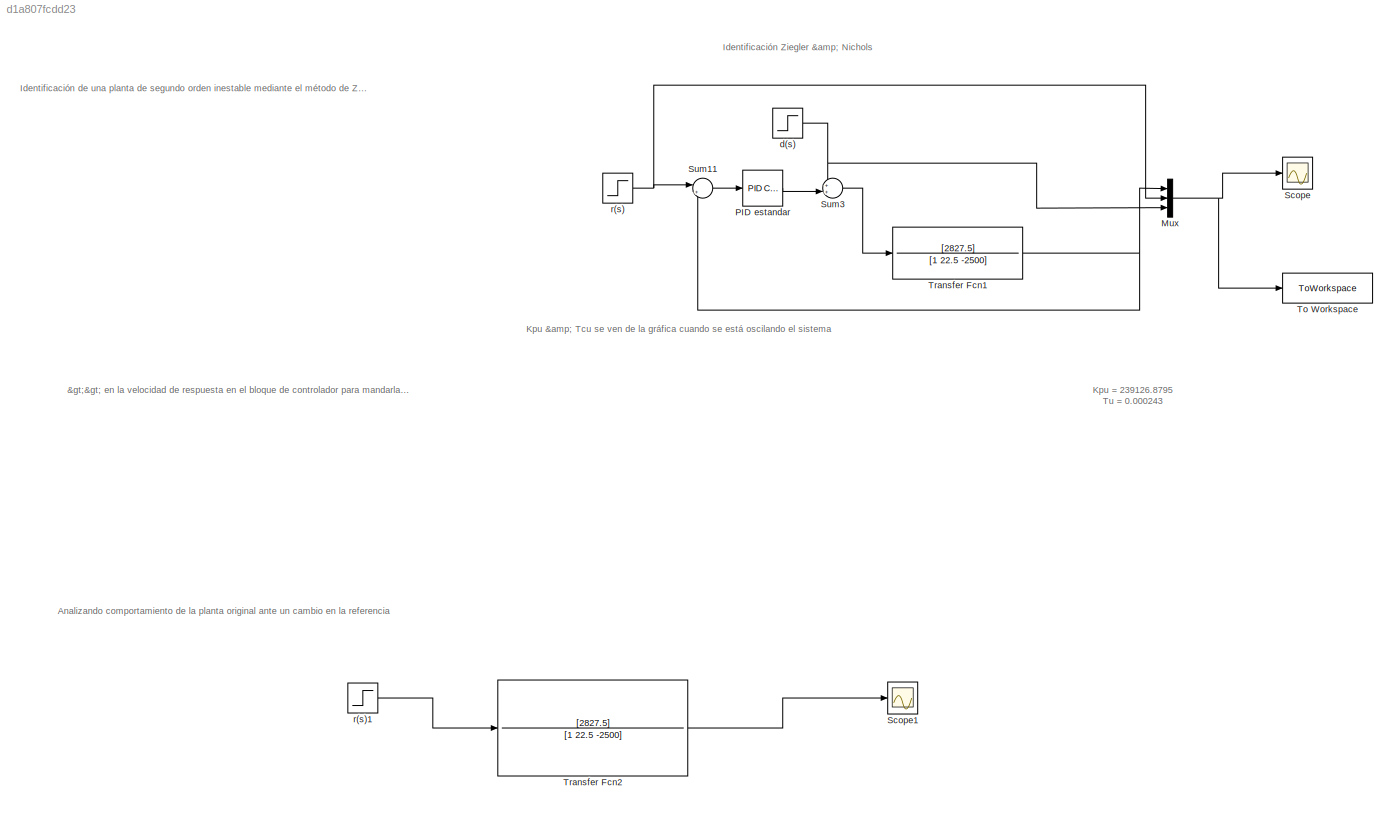
MODEL slx_d1a807fcdd23
KIND model
CONFIG AbsTol = auto
CONFIG EnableMultiTasking = off
CONFIG FixedStep = auto
CONFIG MaxStep = auto
CONFIG MinStep = auto
CONFIG RelTol = 1e-3
CONFIG SampleTimeConstraint = Unconstrained
CONFIG Solver = VariableStepAuto
CONFIG SolverName = VariableStepAuto
CONFIG StartTime = 0.0
CONFIG StopTime = 3
BLOCK [Mux] Mux
  DisplayOption = bar
  Inputs = 3
  Ports = [3, 1]
BLOCK [Reference] PID estandar  REF=simulink/Continuous/PID Controller
  Ports = [1, 1]
  SourceBlock = simulink/Continuous/PID Controller
  SourceProductBaseCode = SL
  SourceProductName = Simulink
  SourceType = PID 1dof
BLOCK [Scope] Scope
  Floating = off
  NumInputPorts = 1
  Ports = [1]
  ScopeSpecificationString = Simulink.scopes.TimeScopeBlockCfg('CurrentConfiguration', extmgr.ConfigurationSet(extmgr.Configuration('Core','General UI',true,'FigureColor',[1 1 1]),extmgr.Configuration('Core','Source UI',true),extmgr.Configuration('Sources','WiredSimulink',true,'DataLogging',true),extmgr.Configuration('Visuals','Time Domain',true,'SerializedDisplays',{struct('MinYLimReal','-755951547874370778321711888253003172...<+4129ch>
BLOCK [Scope] Scope1
  Floating = off
  NumInputPorts = 1
  Ports = [1]
  ScopeSpecificationString = Simulink.scopes.TimeScopeBlockCfg('CurrentConfiguration', extmgr.ConfigurationSet(extmgr.Configuration('Core','General UI',true,'FigureColor',[1 1 1]),extmgr.Configuration('Core','Source UI',true),extmgr.Configuration('Sources','WiredSimulink',true,'DataLoggingVariableName','ScopeData1'),extmgr.Configuration('Visuals','Time Domain',true,'SerializedDisplays',{struct('MinYLimReal','-1231535794898105...<+3000ch>
BLOCK [Sum] Sum11
  IconShape = round
  InputSameDT = off
  Inputs = |+-
  OutDataTypeStr = Inherit: Inherit via internal rule
  Ports = [2, 1]
  SaturateOnIntegerOverflow = off
BLOCK [Sum] Sum3
  IconShape = round
  InputSameDT = off
  Inputs = ++|
  OutDataTypeStr = Inherit: Inherit via internal rule
  Ports = [2, 1]
  SaturateOnIntegerOverflow = off
BLOCK [ToWorkspace] To Workspace
  FixptAsFi = on
  MaxDataPoints = inf
  Ports = [1]
  SampleTime = -1
  Save2DSignal = 2-D array (concatenate along first dimension)
  SaveFormat = Timeseries
  VariableName = Salida
BLOCK [TransferFcn] Transfer Fcn1
  Denominator = [1 22.5 -2500]
  Numerator = [2827.5]
BLOCK [TransferFcn] Transfer Fcn2
  Denominator = [1 22.5 -2500]
  Numerator = [2827.5]
BLOCK [Step] d(s)
  SampleTime = 0
  Time = 0.2
BLOCK [Step] r(s)
  After = 0
  SampleTime = 0
  Time = 0.1
BLOCK [Step] r(s)1
  SampleTime = 0
ANNOTATION (root): Kpu & Tcu se ven de la gráfica cuando se está oscilando el sistema
ANNOTATION (root): Identificación de una planta de segundo orden inestable mediante el método de Ziegler & Nichols con el fin de obtener una de primer orden inestable más tiempo muerto
ANNOTATION (root): >> en la velocidad de respuesta en el bloque de controlador para mandarla a estado osciladorio
ANNOTATION (root): Analizando comportamiento de la planta original ante un cambio en la referencia
ANNOTATION (root): Kpu = 239126.8795 Tu = 0.000243
ANNOTATION (root): Identificación Ziegler & Nichols
NET Mux:1 -> Scope:1, To Workspace:1
LINE PID estandar:1 -> Sum3:2
LINE Sum11:1 -> PID estandar:1
LINE Sum3:1 -> Transfer Fcn1:1
NET Transfer Fcn1:1 -> Mux:1, Sum11:2
LINE Transfer Fcn2:1 -> Scope1:1
NET d(s):1 -> Mux:3, Sum3:1
LINE r(s)1:1 -> Transfer Fcn2:1
NET r(s):1 -> Mux:2, Sum11:1
note: NET lines group one-source signal fan-out (src -> all destinations, sorted); 1:1 wires keep LINE
